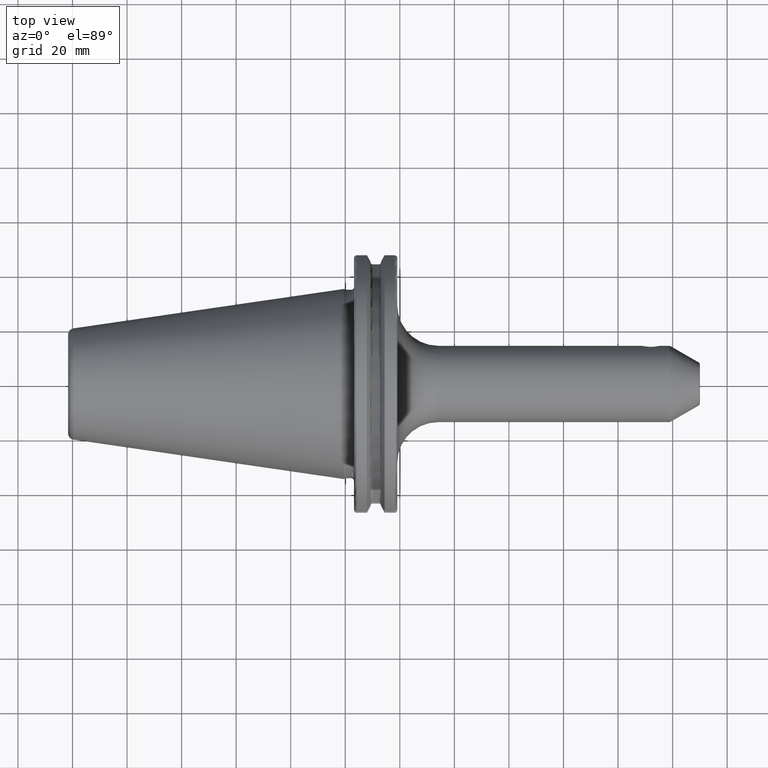
[diagram: clean part render]
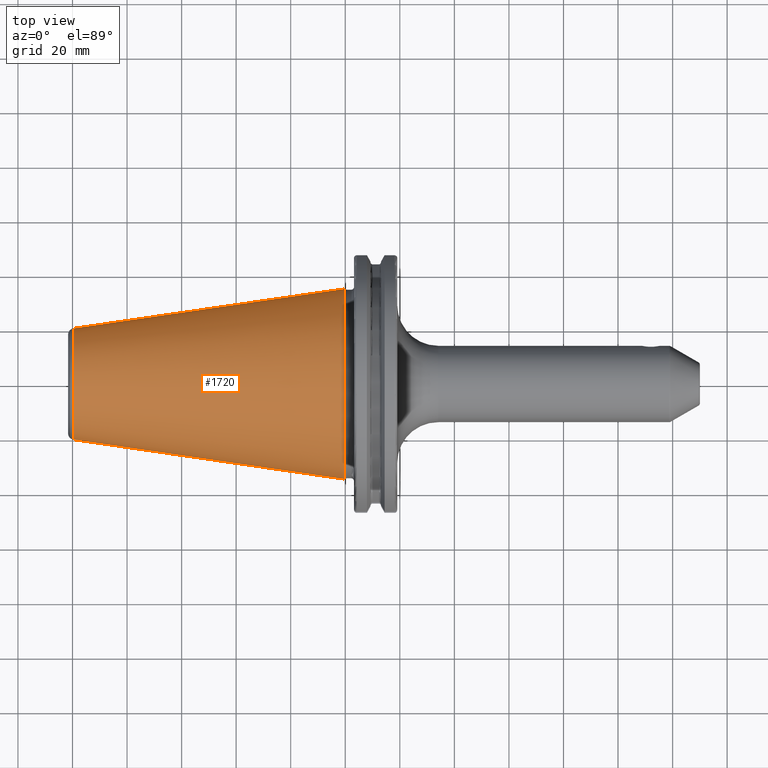
[diagram: same view with one face highlighted and labeled with its STEP entity id]
A machine part, top view. The second image highlights one B-rep face of the part: STEP entity #1720.
In plain terms, the highlighted conical surface has half-angle 8.298 deg.
Its self-contained STEP definition (entity closure, byte-faithful):
#37=CARTESIAN_POINT('',(-9.967471700563E1,0.E0,0.E0));
#38=DIRECTION('',(1.E0,0.E0,0.E0));
#39=DIRECTION('',(0.E0,1.E0,0.E0));
#40=AXIS2_PLACEMENT_3D('',#37,#38,#39);
#42=CARTESIAN_POINT('',(-4.896823332305E-1,0.E0,0.E0));
#43=DIRECTION('',(1.E0,0.E0,0.E0));
#44=DIRECTION('',(0.E0,1.E0,0.E0));
#45=AXIS2_PLACEMENT_3D('',#42,#43,#44);
#47=DIRECTION('',(-9.895312636440E-1,-1.443186691705E-1,0.E0));
#48=VECTOR('',#47,1.002343617797E2);
#49=CARTESIAN_POINT('',(-4.896823332305E-1,3.485358204157E1,0.E0));
#50=LINE('',#49,#48);
#51=DIRECTION('',(-9.895312636440E-1,1.443186691705E-1,0.E0));
#52=VECTOR('',#51,1.002343617797E2);
#53=CARTESIAN_POINT('',(-4.896823332305E-1,-3.485358204157E1,0.E0));
#54=LINE('',#53,#52);
#1388=CARTESIAN_POINT('',(-9.967471700563E1,2.038789234437E1,0.E0));
#1390=VERTEX_POINT('',#1388);
#1392=CARTESIAN_POINT('',(-9.967471700563E1,-2.038789234437E1,0.E0));
#1394=VERTEX_POINT('',#1392);
#1456=CARTESIAN_POINT('',(-4.896823332305E-1,3.485358204157E1,0.E0));
#1457=VERTEX_POINT('',#1456);
#1458=CARTESIAN_POINT('',(-4.896823332305E-1,-3.485358204157E1,0.E0));
#1459=VERTEX_POINT('',#1458);
#1706=CARTESIAN_POINT('',(-5.008219966943E1,0.E0,0.E0));
#1707=DIRECTION('',(1.E0,0.E0,0.E0));
#1708=DIRECTION('',(0.E0,-1.E0,0.E0));
#1709=AXIS2_PLACEMENT_3D('',#1706,#1707,#1708);
#1710=CONICAL_SURFACE('',#1709,2.762073719297E1,8.297826828206E0);
#1712=ORIENTED_EDGE('',*,*,#1711,.F.);
#1714=ORIENTED_EDGE('',*,*,#1713,.T.);
#1716=ORIENTED_EDGE('',*,*,#1715,.T.);
#1717=ORIENTED_EDGE('',*,*,#1699,.F.);
#1718=EDGE_LOOP('',(#1712,#1714,#1716,#1717));
#1719=FACE_OUTER_BOUND('',#1718,.F.);
#1720=ADVANCED_FACE('',(#1719),#1710,.T.);
#41=CIRCLE('',#40,2.038789234437E1);
#46=CIRCLE('',#45,3.485358204157E1);
#1699=EDGE_CURVE('',#1390,#1394,#41,.T.);
#1711=EDGE_CURVE('',#1457,#1390,#50,.T.);
#1713=EDGE_CURVE('',#1457,#1459,#46,.T.);
#1715=EDGE_CURVE('',#1459,#1394,#54,.T.);